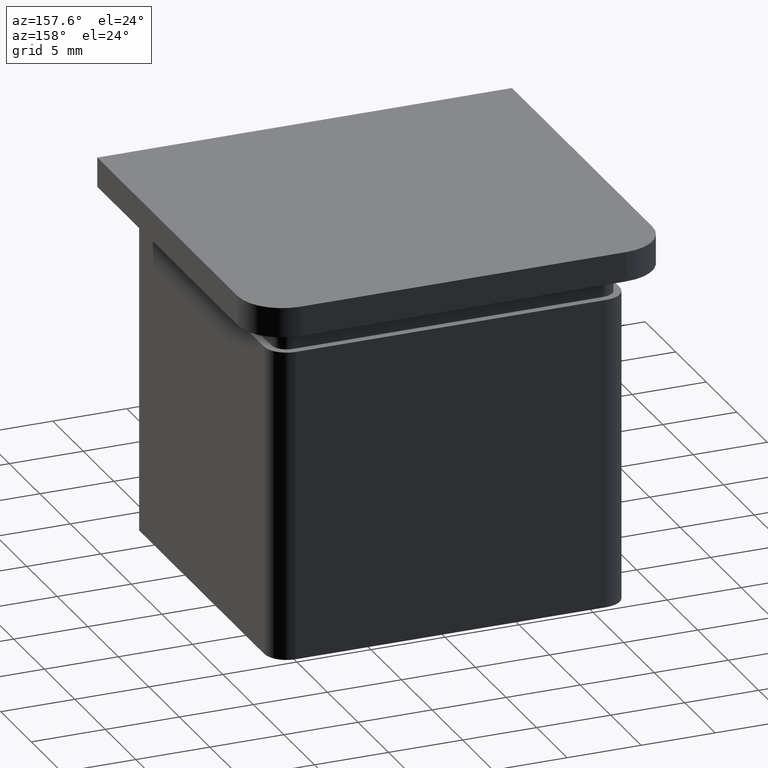
[diagram: clean part render]
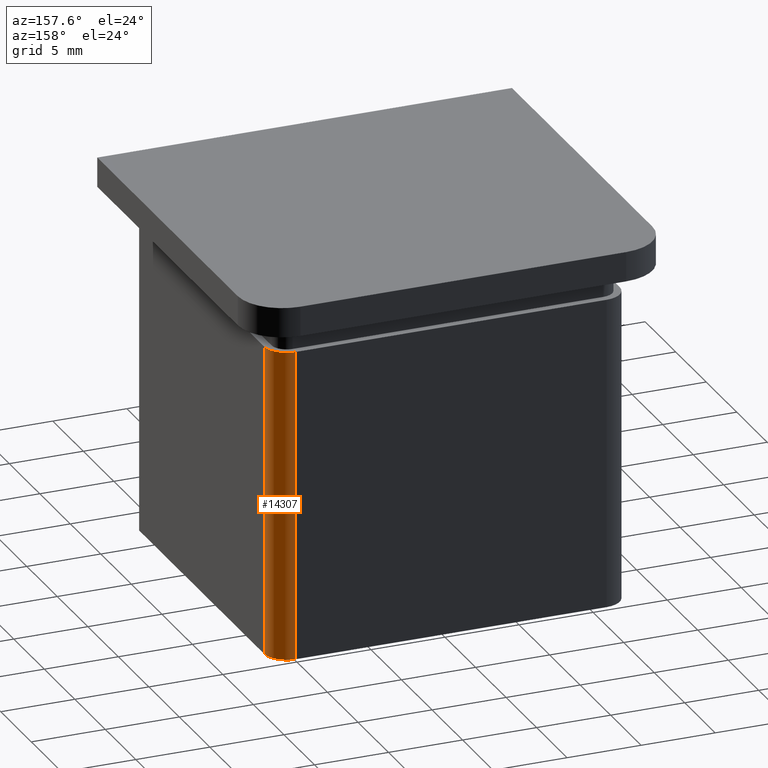
[diagram: same view with one face highlighted and labeled with its STEP entity id]
A machine part, auxiliary view. The second image highlights one B-rep face of the part: STEP entity #14307.
In plain terms, the highlighted cylindrical surface (edge-blend (fillet) strip) has radius 1.5 mm, axis along (-0, -0, 1).
Its self-contained STEP definition (entity closure, byte-faithful):
#195 = LINE ( 'NONE', #7548, #14344 ) ;
#634 = EDGE_CURVE ( 'NONE', #17124, #17163, #195, .T. ) ;
#927 = CIRCLE ( 'NONE', #4815, 1.499999999999999556 ) ;
#1659 = DIRECTION ( 'NONE',  ( 1.000000000000000000, 0.000000000000000000, 0.000000000000000000 ) ) ;
#2002 = ORIENTED_EDGE ( 'NONE', *, *, #7921, .F. ) ;
#2690 = DIRECTION ( 'NONE',  ( 1.000000000000000000, 0.000000000000000000, 0.000000000000000000 ) ) ;
#3984 = AXIS2_PLACEMENT_3D ( 'NONE', #5215, #10886, #2690 ) ;
#4077 = FACE_OUTER_BOUND ( 'NONE', #10114, .T. ) ;
#4815 = AXIS2_PLACEMENT_3D ( 'NONE', #15024, #8114, #13419 ) ;
#5215 = CARTESIAN_POINT ( 'NONE',  ( 10.50000000000000000, 9.500000000000000000, -2.000000000000001776 ) ) ;
#5790 = ORIENTED_EDGE ( 'NONE', *, *, #634, .F. ) ;
#5999 = CYLINDRICAL_SURFACE ( 'NONE', #12993, 1.499999999999999556 ) ;
#6944 = EDGE_CURVE ( 'NONE', #17163, #8374, #7617, .T. ) ;
#7153 = CARTESIAN_POINT ( 'NONE',  ( 10.50000000000000000, 9.500000000000000000, -23.00000000000000000 ) ) ;
#7312 = CARTESIAN_POINT ( 'NONE',  ( 10.49999999999999112, 11.00000000000000000, -23.00000000000000000 ) ) ;
#7548 = CARTESIAN_POINT ( 'NONE',  ( 12.00000000000000000, 9.499999999999989342, -23.00000000000000000 ) ) ;
#7604 = DIRECTION ( 'NONE',  ( -0.000000000000000000, -0.000000000000000000, 1.000000000000000000 ) ) ;
#7617 = CIRCLE ( 'NONE', #3984, 1.499999999999999556 ) ;
#7921 = EDGE_CURVE ( 'NONE', #10409, #17124, #927, .T. ) ;
#8114 = DIRECTION ( 'NONE',  ( 0.000000000000000000, 0.000000000000000000, -1.000000000000000000 ) ) ;
#8374 = VERTEX_POINT ( 'NONE', #14249 ) ;
#8515 = DIRECTION ( 'NONE',  ( -0.000000000000000000, -0.000000000000000000, 1.000000000000000000 ) ) ;
#8668 = DIRECTION ( 'NONE',  ( -0.000000000000000000, -0.000000000000000000, 1.000000000000000000 ) ) ;
#8786 = LINE ( 'NONE', #7312, #12847 ) ;
#9410 = CARTESIAN_POINT ( 'NONE',  ( 10.49999999999999112, 11.00000000000000000, -23.00000000000000000 ) ) ;
#10114 = EDGE_LOOP ( 'NONE', ( #10628, #5790, #2002, #16759 ) ) ;
#10409 = VERTEX_POINT ( 'NONE', #9410 ) ;
#10474 = CARTESIAN_POINT ( 'NONE',  ( 12.00000000000000000, 9.499999999999985789, -2.000000000000000000 ) ) ;
#10628 = ORIENTED_EDGE ( 'NONE', *, *, #6944, .F. ) ;
#10646 = CARTESIAN_POINT ( 'NONE',  ( 12.00000000000000000, 9.499999999999989342, -23.00000000000000000 ) ) ;
#10886 = DIRECTION ( 'NONE',  ( -0.000000000000000000, -0.000000000000000000, 1.000000000000000000 ) ) ;
#12847 = VECTOR ( 'NONE', #8668, 1000.000000000000000 ) ;
#12993 = AXIS2_PLACEMENT_3D ( 'NONE', #7153, #8515, #1659 ) ;
#13419 = DIRECTION ( 'NONE',  ( -1.000000000000000000, 0.000000000000000000, 0.000000000000000000 ) ) ;
#14249 = CARTESIAN_POINT ( 'NONE',  ( 10.49999999999999289, 11.00000000000000000, -2.000000000000001776 ) ) ;
#14307 = ADVANCED_FACE ( 'NONE', ( #4077 ), #5999, .T. ) ;
#14344 = VECTOR ( 'NONE', #7604, 1000.000000000000000 ) ;
#14750 = EDGE_CURVE ( 'NONE', #10409, #8374, #8786, .T. ) ;
#15024 = CARTESIAN_POINT ( 'NONE',  ( 10.50000000000000000, 9.500000000000000000, -23.00000000000000000 ) ) ;
#16759 = ORIENTED_EDGE ( 'NONE', *, *, #14750, .T. ) ;
#17124 = VERTEX_POINT ( 'NONE', #10646 ) ;
#17163 = VERTEX_POINT ( 'NONE', #10474 ) ;